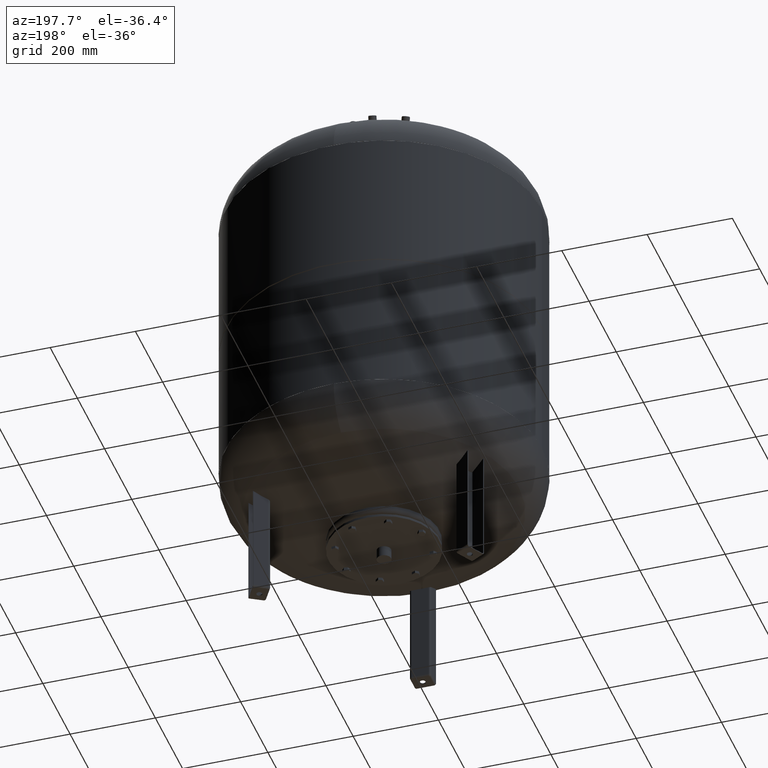
[diagram: clean part render]
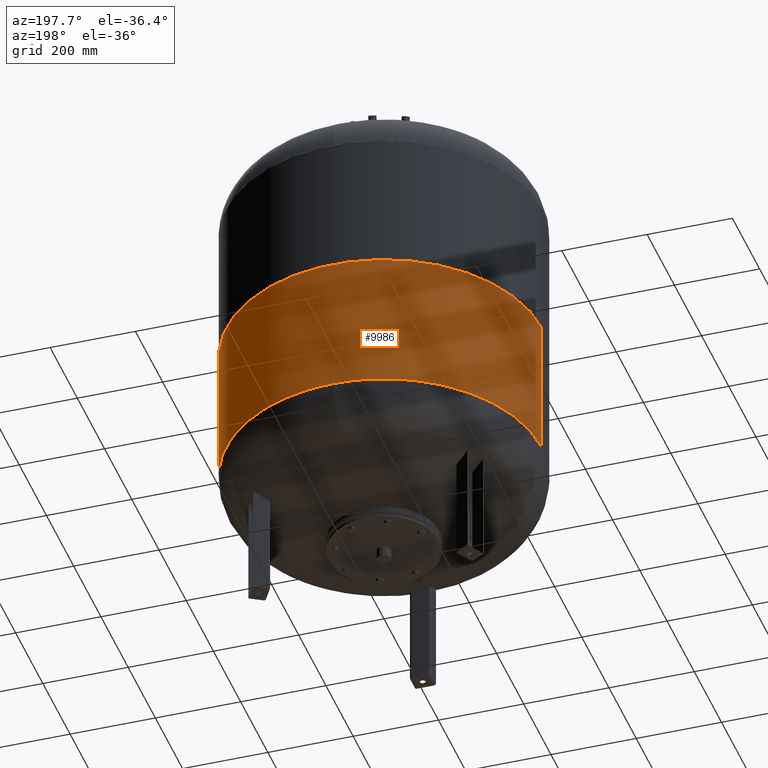
[diagram: same view with one face highlighted and labeled with its STEP entity id]
A machine part, auxiliary view. The second image highlights one B-rep face of the part: STEP entity #9986.
In plain terms, the highlighted cylindrical surface (partial cylindrical patch) has radius 370 mm, axis along (0, 0, 1).
Its self-contained STEP definition (entity closure, byte-faithful):
#9786=CARTESIAN_POINT('',(369.999999999999770,0.0,700.0));
#9787=VERTEX_POINT('',#9786);
#9788=CARTESIAN_POINT('',(370.0,0.0,369.0));
#9789=VERTEX_POINT('',#9788);
#9790=CARTESIAN_POINT('',(369.999999999999770,0.0,700.0));
#9791=DIRECTION('',(0.0,0.0,-1.0));
#9792=VECTOR('',#9791,331.0);
#9793=LINE('',#9790,#9792);
#9794=EDGE_CURVE('',#9787,#9789,#9793,.T.);
#9796=CARTESIAN_POINT('',(-370.0,-4.531044E-014,700.0));
#9797=VERTEX_POINT('',#9796);
#9805=CARTESIAN_POINT('',(-370.0,-4.531044E-014,369.0));
#9806=VERTEX_POINT('',#9805);
#9807=CARTESIAN_POINT('',(-370.0,-4.531044E-014,700.0));
#9808=DIRECTION('',(0.0,0.0,-1.0));
#9809=VECTOR('',#9808,331.0);
#9810=LINE('',#9807,#9809);
#9811=EDGE_CURVE('',#9797,#9806,#9810,.T.);
#9902=CARTESIAN_POINT('',(0.0,0.0,700.0));
#9903=DIRECTION('',(0.0,0.0,1.0));
#9904=DIRECTION('',(1.0,0.0,0.0));
#9905=AXIS2_PLACEMENT_3D('',#9902,#9903,#9904);
#9906=CIRCLE('',#9905,369.999999999999770);
#9907=EDGE_CURVE('',#9787,#9797,#9906,.T.);
#9969=CARTESIAN_POINT('',(-1.668796E-014,0.0,371.500000000000000));
#9970=DIRECTION('',(0.0,0.0,1.0));
#9971=DIRECTION('',(1.0,0.0,0.0));
#9972=AXIS2_PLACEMENT_3D('',#9969,#9970,#9971);
#9973=CYLINDRICAL_SURFACE('',#9972,370.0);
#9974=ORIENTED_EDGE('',*,*,#9794,.T.);
#9975=CARTESIAN_POINT('',(-1.668796E-014,0.0,369.0));
#9976=DIRECTION('',(0.0,0.0,-1.0));
#9977=DIRECTION('',(1.0,0.0,0.0));
#9978=AXIS2_PLACEMENT_3D('',#9975,#9976,#9977);
#9979=CIRCLE('',#9978,370.0);
#9980=EDGE_CURVE('',#9806,#9789,#9979,.T.);
#9981=ORIENTED_EDGE('',*,*,#9980,.F.);
#9982=ORIENTED_EDGE('',*,*,#9811,.F.);
#9983=ORIENTED_EDGE('',*,*,#9907,.F.);
#9984=EDGE_LOOP('',(#9974,#9981,#9982,#9983));
#9985=FACE_OUTER_BOUND('',#9984,.T.);
#9986=ADVANCED_FACE('',(#9985),#9973,.T.);